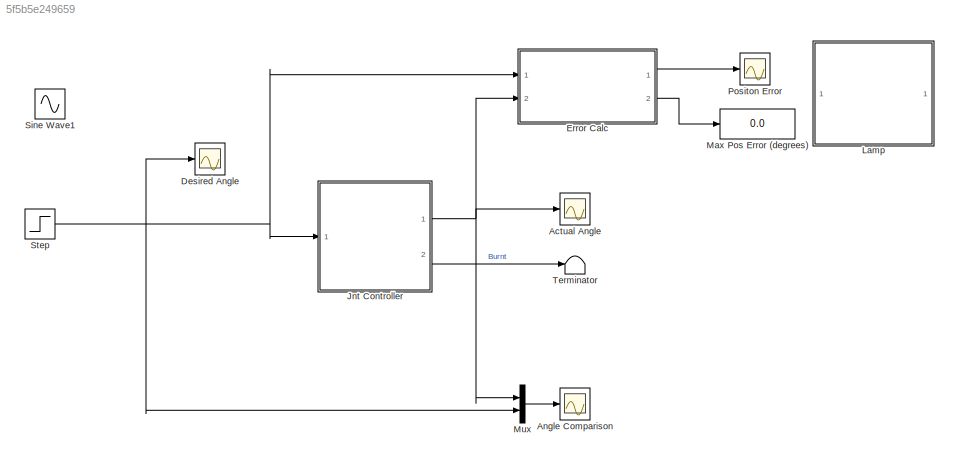
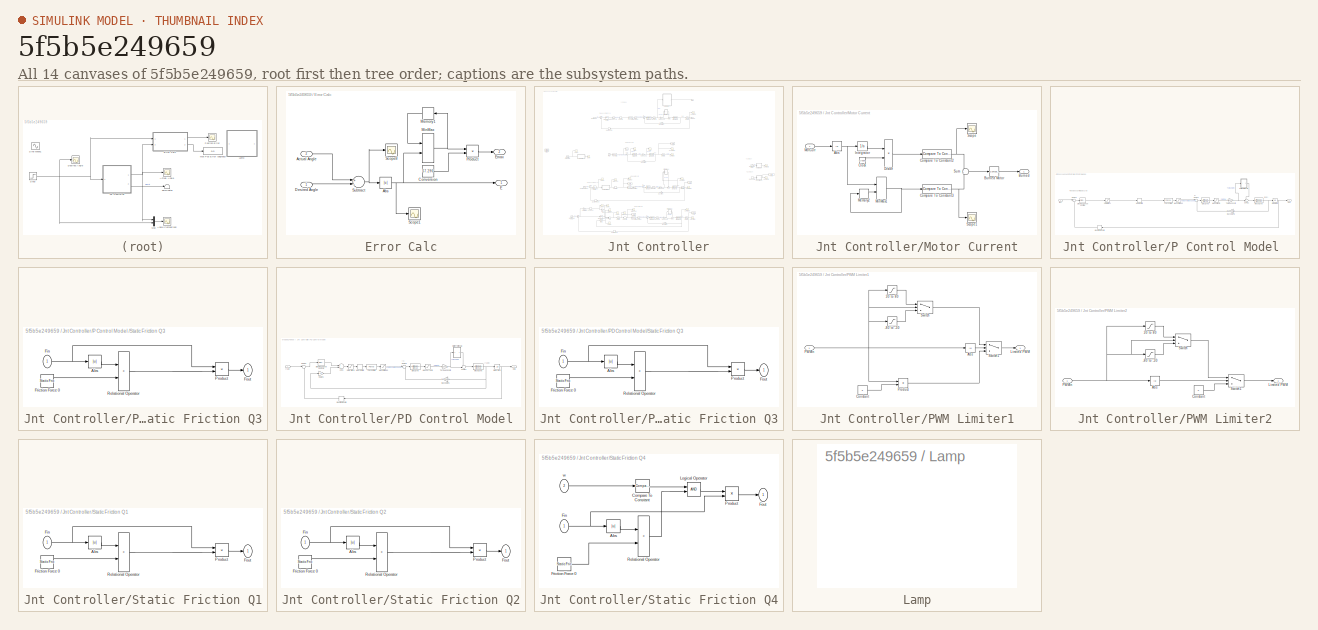
[diagram: thumbnail index - all 14 canvases of the model, root first then tree order]
MODEL slx_5f5b5e249659
KIND model
CONFIG AbsTol = auto
CONFIG EnableMultiTasking = off
CONFIG FixedStep = 0.001
CONFIG MaxStep = auto
CONFIG MinStep = auto
CONFIG RelTol = 1e-3
CONFIG SampleTimeConstraint = Unconstrained
CONFIG Solver = VariableStepAuto
CONFIG SolverName = VariableStepAuto
CONFIG StartTime = 0.0
CONFIG StopTime = 12
BLOCK [Scope] Actual Angle
  NumInputPorts = 1
  Ports = [1]
  ScopeSpecificationString = Simulink.scopes.TimeScopeBlockCfg('CurrentConfiguration', extmgr.ConfigurationSet(extmgr.Configuration('Core','General UI',true,'FigureColor',[1 1 1]),extmgr.Configuration('Core','Source UI',true),extmgr.Configuration('Sources','WiredSimulink',true,'DataLoggingSaveFormat','Array','DataLoggingDecimation','1','DataLoggingDecimateData',true,'DataLoggingVariableName','ScopeData2'),extmgr.Configuration...<+1987ch>
BLOCK [Scope] Angle Comparison
  NumInputPorts = 1
  Ports = [1]
  ScopeSpecificationString = Simulink.scopes.TimeScopeBlockCfg('CurrentConfiguration', extmgr.ConfigurationSet(extmgr.Configuration('Core','General UI',true,'FigureColor',[1 1 1]),extmgr.Configuration('Core','Source UI',true),extmgr.Configuration('Sources','WiredSimulink',true,'DataLoggingSaveFormat','Array','DataLoggingDecimation','1','DataLoggingDecimateData',true,'DataLoggingVariableName','ScopeData3'),extmgr.Configuration...<+2020ch>
BLOCK [Scope] Desired Angle
  NumInputPorts = 1
  Ports = [1]
  ScopeSpecificationString = Simulink.scopes.TimeScopeBlockCfg('CurrentConfiguration', extmgr.ConfigurationSet(extmgr.Configuration('Core','General UI',true,'FigureColor',[1 1 1]),extmgr.Configuration('Core','Source UI',true),extmgr.Configuration('Sources','WiredSimulink',true,'DataLoggingSaveFormat','Array','DataLoggingDecimation','1','DataLoggingDecimateData',true,'DataLoggingVariableName','ScopeData1'),extmgr.Configuration...<+2031ch>
BLOCK [SubSystem] Error Calc
  Ports = [2, 2]
  RequestExecContextInheritance = off
  Variant = off
BLOCK [Abs] Error Calc/Abs
  SaturateOnIntegerOverflow = off
BLOCK [Inport] Error Calc/Actual Angle
  IconDisplay = Port number
  Port = 2
BLOCK [Constant] Error Calc/Conversion
  Value = 57.296
BLOCK [Inport] Error Calc/Desired Angle
  IconDisplay = Port number
BLOCK [Outport] Error Calc/E
  IconDisplay = Port number
BLOCK [Outport] Error Calc/Emax
  IconDisplay = Port number
  Port = 2
BLOCK [Memory] Error Calc/Memory1
BLOCK [MinMax] Error Calc/MinMax
  Function = max
  InputSameDT = off
  Inputs = 2
  Ports = [2, 1]
  SaturateOnIntegerOverflow = off
  ZeroCross = off
BLOCK [Product] Error Calc/Product
  InputSameDT = off
  OutDataTypeStr = Inherit: Inherit via internal rule
  Ports = [2, 1]
  RndMeth = Floor
  SaturateOnIntegerOverflow = off
BLOCK [Scope] Error Calc/Scope1
  NumInputPorts = 1
  Ports = [1]
  ScopeSpecificationString = Simulink.scopes.TimeScopeBlockCfg('CurrentConfiguration', extmgr.ConfigurationSet(extmgr.Configuration('Core','General UI',true),extmgr.Configuration('Core','Source UI',true),extmgr.Configuration('Sources','WiredSimulink',true,'DataLoggingVariableName','ScopeData2'),extmgr.Configuration('Visuals','Time Domain',true,'SerializedDisplays',{struct('MinYLimReal','-2.14304','MaxYLimReal','3.57941','YLab...<+1439ch>
BLOCK [Scope] Error Calc/Scope8
  NumInputPorts = 1
  Ports = [1]
  ScopeSpecificationString = Simulink.scopes.TimeScopeBlockCfg('CurrentConfiguration', extmgr.ConfigurationSet(extmgr.Configuration('Core','General UI',true),extmgr.Configuration('Core','Source UI',true),extmgr.Configuration('Sources','WiredSimulink',true,'DataLoggingVariableName','ScopeData3'),extmgr.Configuration('Visuals','Time Domain',true,'SerializedDisplays',{struct('MinYLimReal','-2.14304','MaxYLimReal','3.57941','YLab...<+1444ch>
BLOCK [Sum] Error Calc/Subtract
  InputSameDT = off
  Inputs = +-
  OutDataTypeStr = Inherit: Inherit via internal rule
  Ports = [2, 1]
  SaturateOnIntegerOverflow = off
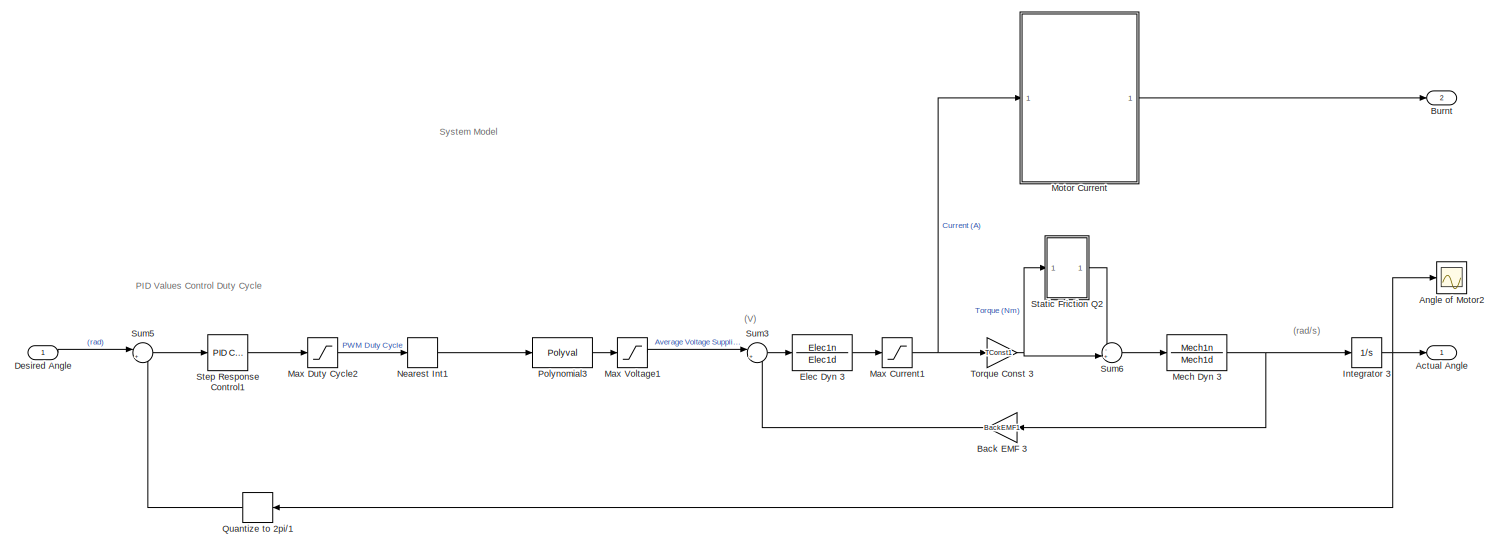
[diagram: Jnt Controller - part 1/8, top center region]
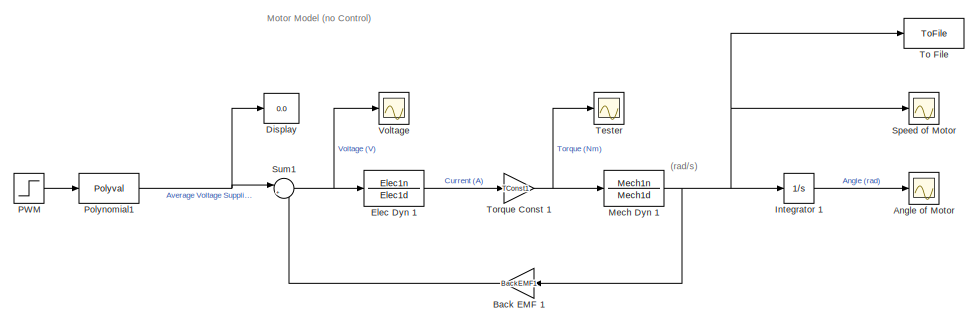
[diagram: Jnt Controller - part 2/8, central region]
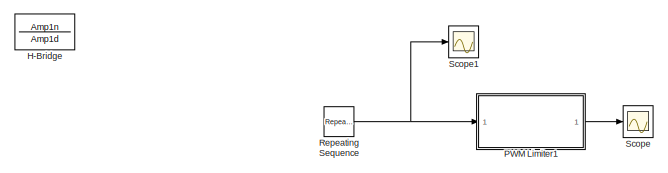
[diagram: Jnt Controller - part 3/8, middle left region]
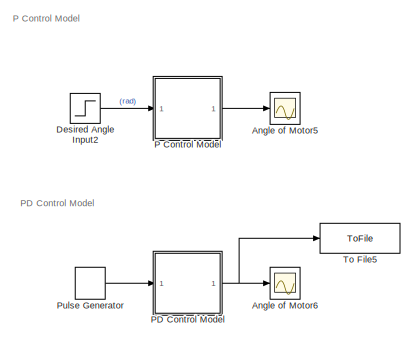
[diagram: Jnt Controller - part 4/8, middle right region]
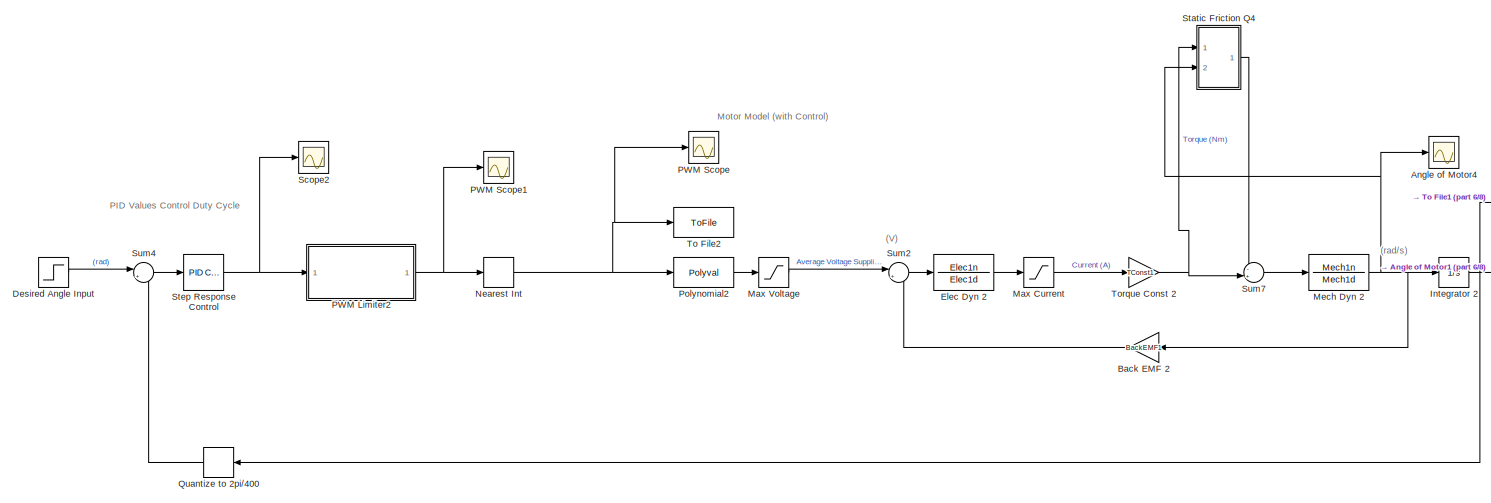
[diagram: Jnt Controller - part 5/8, central region]
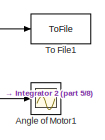
[diagram: Jnt Controller - part 6/8, central region]
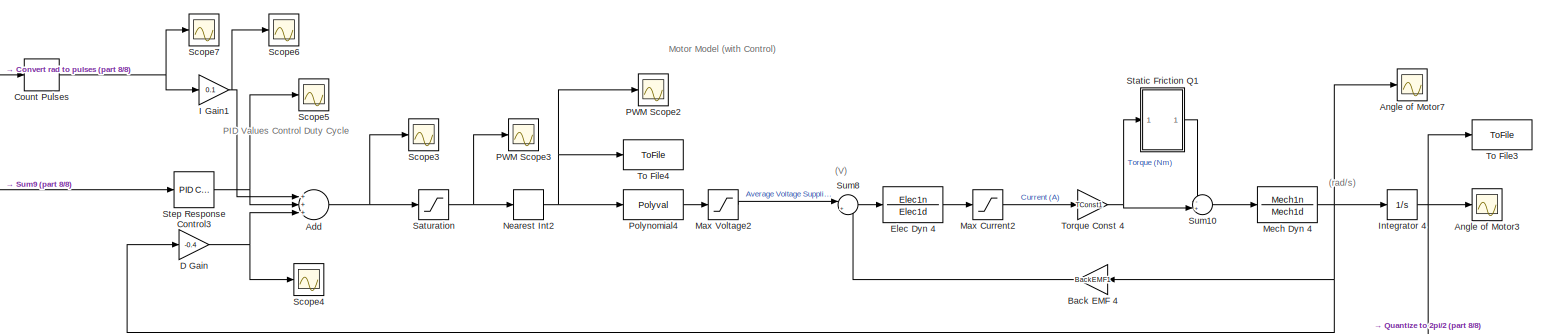
[diagram: Jnt Controller - part 7/8, bottom center region]
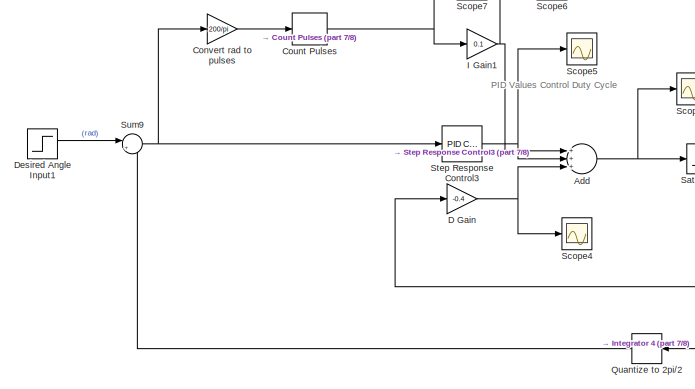
[diagram: Jnt Controller - part 8/8, bottom left region]
BLOCK [SubSystem] Jnt Controller
  Ports = [1, 2]
  RequestExecContextInheritance = off
  Variant = off
BLOCK [Outport] Jnt Controller/Actual Angle
  IconDisplay = Port number
BLOCK [Sum] Jnt Controller/Add
  InputSameDT = off
  Inputs = +++
  OutDataTypeStr = Inherit: Inherit via internal rule
  Ports = [3, 1]
  SaturateOnIntegerOverflow = off
BLOCK [Scope] Jnt Controller/Angle of Motor
  NumInputPorts = 1
  Ports = [1]
  ScopeSpecificationString = Simulink.scopes.TimeScopeBlockCfg('CurrentConfiguration', extmgr.ConfigurationSet(extmgr.Configuration('Core','General UI',true),extmgr.Configuration('Core','Source UI',true),extmgr.Configuration('Sources','WiredSimulink',true,'DataLoggingVariableName','ScopeData6'),extmgr.Configuration('Visuals','Time Domain',true,'SerializedDisplays',{struct('MinYLimReal','-177.49401','MaxYLimReal','1597.13387',...<+1423ch>
BLOCK [Scope] Jnt Controller/Angle of Motor1
  Commented = on
  NumInputPorts = 1
  Ports = [1]
  ScopeSpecificationString = Simulink.scopes.TimeScopeBlockCfg('CurrentConfiguration', extmgr.ConfigurationSet(extmgr.Configuration('Core','General UI',true),extmgr.Configuration('Core','Source UI',true),extmgr.Configuration('Sources','WiredSimulink',true,'DataLoggingVariableName','ScopeData1'),extmgr.Configuration('Visuals','Time Domain',true,'SerializedDisplays',{struct('MinYLimReal','-0.0099','MaxYLimReal','0.0891','YLabel...<+1424ch>
BLOCK [Scope] Jnt Controller/Angle of Motor2
  NumInputPorts = 1
  Ports = [1]
  ScopeSpecificationString = Simulink.scopes.TimeScopeBlockCfg('CurrentConfiguration', extmgr.ConfigurationSet(extmgr.Configuration('Core','General UI',true),extmgr.Configuration('Core','Source UI',true),extmgr.Configuration('Sources','WiredSimulink',true,'DataLoggingVariableName','ScopeData1'),extmgr.Configuration('Visuals','Time Domain',true,'SerializedDisplays',{struct('MinYLimReal','-1.00000','MaxYLimReal','1.00000','YLab...<+1408ch>
BLOCK [Scope] Jnt Controller/Angle of Motor3
  NumInputPorts = 1
  Ports = [1]
  ScopeSpecificationString = Simulink.scopes.TimeScopeBlockCfg('CurrentConfiguration', extmgr.ConfigurationSet(extmgr.Configuration('Core','General UI',true),extmgr.Configuration('Core','Source UI',true),extmgr.Configuration('Sources','WiredSimulink',true,'DataLoggingVariableName','ScopeData6'),extmgr.Configuration('Visuals','Time Domain',true,'SerializedDisplays',{struct('MinYLimReal','-0.42161','MaxYLimReal','3.79452','YLab...<+1407ch>
BLOCK [Scope] Jnt Controller/Angle of Motor4
  Commented = on
  NumInputPorts = 1
  Ports = [1]
  ScopeSpecificationString = Simulink.scopes.TimeScopeBlockCfg('CurrentConfiguration', extmgr.ConfigurationSet(extmgr.Configuration('Core','General UI',true),extmgr.Configuration('Core','Source UI',true),extmgr.Configuration('Sources','WiredSimulink',true,'DataLoggingVariableName','ScopeData10'),extmgr.Configuration('Visuals','Time Domain',true,'SerializedDisplays',{struct('MinYLimReal','-0.0102','MaxYLimReal','0.0918','YLabe...<+1397ch>
BLOCK [Scope] Jnt Controller/Angle of Motor5
  NumInputPorts = 1
  Ports = [1]
  ScopeSpecificationString = Simulink.scopes.TimeScopeBlockCfg('CurrentConfiguration', extmgr.ConfigurationSet(extmgr.Configuration('Core','General UI',true),extmgr.Configuration('Core','Source UI',true),extmgr.Configuration('Sources','WiredSimulink',true,'DataLoggingVariableName','ScopeData6'),extmgr.Configuration('Visuals','Time Domain',true,'SerializedDisplays',{struct('MinYLimReal','-2.18688','MaxYLimReal','19.6819','YLab...<+1407ch>
BLOCK [Scope] Jnt Controller/Angle of Motor6
  NumInputPorts = 1
  Ports = [1]
  ScopeSpecificationString = Simulink.scopes.TimeScopeBlockCfg('CurrentConfiguration', extmgr.ConfigurationSet(extmgr.Configuration('Core','General UI',true),extmgr.Configuration('Core','Source UI',true),extmgr.Configuration('Sources','WiredSimulink',true,'DataLoggingVariableName','ScopeData11'),extmgr.Configuration('Visuals','Time Domain',true,'SerializedDisplays',{struct('MinYLimReal','-2.31303','MaxYLimReal','4.71645','YLa...<+1412ch>
BLOCK [Scope] Jnt Controller/Angle of Motor7
  NumInputPorts = 1
  Ports = [1]
  ScopeSpecificationString = Simulink.scopes.TimeScopeBlockCfg('CurrentConfiguration', extmgr.ConfigurationSet(extmgr.Configuration('Core','General UI',true),extmgr.Configuration('Core','Source UI',true),extmgr.Configuration('Sources','WiredSimulink',true,'DataLoggingVariableName','ScopeData12'),extmgr.Configuration('Visuals','Time Domain',true,'SerializedDisplays',{struct('MinYLimReal','-14.12602','MaxYLimReal','67.82391','Y...<+1412ch>
BLOCK [Gain] Jnt Controller/Back EMF 1
  Gain = BackEMF1
  OutDataTypeStr = Inherit: Inherit via internal rule
  ParamDataTypeStr = Inherit: Inherit via internal rule
  SaturateOnIntegerOverflow = off
BLOCK [Gain] Jnt Controller/Back EMF 2
  Commented = on
  Gain = BackEMF1
  OutDataTypeStr = Inherit: Inherit via internal rule
  ParamDataTypeStr = Inherit: Inherit via internal rule
  SaturateOnIntegerOverflow = off
BLOCK [Gain] Jnt Controller/Back EMF 3
  Gain = BackEMF1
  OutDataTypeStr = Inherit: Inherit via internal rule
  ParamDataTypeStr = Inherit: Inherit via internal rule
  SaturateOnIntegerOverflow = off
BLOCK [Gain] Jnt Controller/Back EMF 4
  Gain = BackEMF1
  OutDataTypeStr = Inherit: Inherit via internal rule
  ParamDataTypeStr = Inherit: Inherit via internal rule
  SaturateOnIntegerOverflow = off
BLOCK [Outport] Jnt Controller/Burnt
  IconDisplay = Port number
  Port = 2
BLOCK [Gain] Jnt Controller/Convert rad to pulses
  Gain = 200/pi
  OutDataTypeStr = Inherit: Inherit via internal rule
  ParamDataTypeStr = Inherit: Inherit via internal rule
  SaturateOnIntegerOverflow = off
BLOCK [DiscreteIntegrator] Jnt Controller/Count Pulses
  ICPrevOutput = DiscIntNeverNeededParam
  ICPrevScaledInput = DiscIntNeverNeededParam
  InitialConditionSetting = State (most efficient)
  Ports = [1, 1]
  SampleTime = 0.001
BLOCK [Gain] Jnt Controller/D Gain
  Gain = -0.4
  OutDataTypeStr = Inherit: Inherit via internal rule
  ParamDataTypeStr = Inherit: Inherit via internal rule
  SaturateOnIntegerOverflow = off
BLOCK [Inport] Jnt Controller/Desired Angle
  IconDisplay = Port number
BLOCK [Step] Jnt Controller/Desired Angle Input
  After = pi
  Commented = on
  SampleTime = 0
  Time = 0
BLOCK [Step] Jnt Controller/Desired Angle Input1
  After = pi
  SampleTime = 0
  Time = 0
BLOCK [Step] Jnt Controller/Desired Angle Input2
  After = 4*pi
  SampleTime = 0
  Time = 0
BLOCK [Display] Jnt Controller/Display
  Decimation = 1
  Ports = [1]
BLOCK [TransferFcn] Jnt Controller/Elec Dyn 1
  Denominator = Elec1d
  Numerator = Elec1n
BLOCK [TransferFcn] Jnt Controller/Elec Dyn 2
  Commented = on
  Denominator = Elec1d
  Numerator = Elec1n
BLOCK [TransferFcn] Jnt Controller/Elec Dyn 3
  Denominator = Elec1d
  Numerator = Elec1n
BLOCK [TransferFcn] Jnt Controller/Elec Dyn 4
  Denominator = Elec1d
  Numerator = Elec1n
BLOCK [TransferFcn] Jnt Controller/H-Bridge 
  Commented = on
  Denominator = Amp1d
  Numerator = Amp1n
BLOCK [Gain] Jnt Controller/I Gain1
  Gain = 0.1
  OutDataTypeStr = Inherit: Inherit via internal rule
  ParamDataTypeStr = Inherit: Inherit via internal rule
  SaturateOnIntegerOverflow = off
BLOCK [Integrator] Jnt Controller/Integrator 1
  Ports = [1, 1]
BLOCK [Integrator] Jnt Controller/Integrator 2
  Commented = on
  Ports = [1, 1]
BLOCK [Integrator] Jnt Controller/Integrator 3
  Ports = [1, 1]
BLOCK [Integrator] Jnt Controller/Integrator 4
  Ports = [1, 1]
BLOCK [Saturate] Jnt Controller/Max Current
  Commented = on
  InputPortMap = u0
  LowerLimit = -1
  Ports = [1, 1]
  UpperLimit = 1
BLOCK [Saturate] Jnt Controller/Max Current1
  InputPortMap = u0
  LowerLimit = -1
  Ports = [1, 1]
  UpperLimit = 1
BLOCK [Saturate] Jnt Controller/Max Current2
  InputPortMap = u0
  LowerLimit = -1
  Ports = [1, 1]
  UpperLimit = 1
BLOCK [Saturate] Jnt Controller/Max Duty Cycle2
  InputPortMap = u0
  LowerLimit = -255
  Ports = [1, 1]
  UpperLimit = 255
BLOCK [Saturate] Jnt Controller/Max Voltage
  Commented = on
  InputPortMap = u0
  LowerLimit = -AmpSat1
  Ports = [1, 1]
  UpperLimit = AmpSat1
BLOCK [Saturate] Jnt Controller/Max Voltage1
  InputPortMap = u0
  LowerLimit = -AmpSat1
  Ports = [1, 1]
  UpperLimit = AmpSat1
BLOCK [Saturate] Jnt Controller/Max Voltage2
  InputPortMap = u0
  LowerLimit = -AmpSat1
  Ports = [1, 1]
  UpperLimit = AmpSat1
BLOCK [TransferFcn] Jnt Controller/Mech Dyn 1
  Denominator = Mech1d
  Numerator = Mech1n
BLOCK [TransferFcn] Jnt Controller/Mech Dyn 2
  Commented = on
  Denominator = Mech1d
  Numerator = Mech1n
BLOCK [TransferFcn] Jnt Controller/Mech Dyn 3
  Denominator = Mech1d
  Numerator = Mech1n
BLOCK [TransferFcn] Jnt Controller/Mech Dyn 4
  Denominator = Mech1d
  Numerator = Mech1n
BLOCK [SubSystem] Jnt Controller/Motor Current
  Ports = [1, 1]
  RequestExecContextInheritance = off
  Variant = off
BLOCK [Abs] Jnt Controller/Motor Current/Abs
  SaturateOnIntegerOverflow = off
BLOCK [Outport] Jnt Controller/Motor Current/Burned
  IconDisplay = Port number
BLOCK [Reference] Jnt Controller/Motor Current/Burned Motor  REF=simulink/Logic and Bit
Operations/Compare
To Zero
  Ports = [1, 1]
  SourceBlock = simulink/Logic and Bit\nOperations/Compare\nTo Zero
  SourceProductBaseCode = SL
  SourceProductName = Simulink
  SourceType = Compare To Zero
BLOCK [Clock] Jnt Controller/Motor Current/Clock
BLOCK [Reference] Jnt Controller/Motor Current/Compare To Constant2  REF=simulink/Logic and Bit
Operations/Compare
To Constant
  Ports = [1, 1]
  SourceBlock = simulink/Logic and Bit\nOperations/Compare\nTo Constant
  SourceProductBaseCode = SL
  SourceProductName = Simulink
  SourceType = Compare To Constant
BLOCK [Reference] Jnt Controller/Motor Current/Compare To Constant3  REF=simulink/Logic and Bit
Operations/Compare
To Constant
  Ports = [1, 1]
  SourceBlock = simulink/Logic and Bit\nOperations/Compare\nTo Constant
  SourceProductBaseCode = SL
  SourceProductName = Simulink
  SourceType = Compare To Constant
BLOCK [Product] Jnt Controller/Motor Current/Divide
  InputSameDT = off
  Inputs = */
  OutDataTypeStr = Inherit: Inherit via internal rule
  Ports = [2, 1]
  RndMeth = Floor
  SaturateOnIntegerOverflow = off
BLOCK [Integrator] Jnt Controller/Motor Current/Integrator
  Ports = [1, 1]
BLOCK [Memory] Jnt Controller/Motor Current/Memory2
BLOCK [MinMax] Jnt Controller/Motor Current/MinMax1
  Function = max
  InputSameDT = off
  Inputs = 2
  Ports = [2, 1]
  SaturateOnIntegerOverflow = off
  ZeroCross = off
BLOCK [Inport] Jnt Controller/Motor Current/MotCurr
  IconDisplay = Port number
BLOCK [Scope] Jnt Controller/Motor Current/Scope
  NumInputPorts = 1
  Ports = [1]
  ScopeSpecificationString = Simulink.scopes.TimeScopeBlockCfg('CurrentConfiguration', extmgr.ConfigurationSet(extmgr.Configuration('Core','General UI',true),extmgr.Configuration('Core','Source UI',true),extmgr.Configuration('Sources','WiredSimulink',true,'DataLoggingVariableName','ScopeData1'),extmgr.Configuration('Visuals','Time Domain',true,'SerializedDisplays',{struct('MinYLimReal','-0.125','MaxYLimReal','1.125','YLabelRe...<+1400ch>
BLOCK [Scope] Jnt Controller/Motor Current/Scope1
  NumInputPorts = 1
  Ports = [1]
  ScopeSpecificationString = Simulink.scopes.TimeScopeBlockCfg('CurrentConfiguration', extmgr.ConfigurationSet(extmgr.Configuration('Core','General UI',true),extmgr.Configuration('Core','Source UI',true),extmgr.Configuration('Sources','WiredSimulink',true,'DataLoggingVariableName','ScopeData2'),extmgr.Configuration('Visuals','Time Domain',true,'SerializedDisplays',{struct('MinYLimReal','-1.00000','MaxYLimReal','1.00000','YLab...<+1412ch>
BLOCK [Sum] Jnt Controller/Motor Current/Sum
  IconShape = round
  InputSameDT = off
  OutDataTypeStr = Inherit: Inherit via internal rule
  Ports = [2, 1]
  SaturateOnIntegerOverflow = off
BLOCK [Quantizer] Jnt Controller/Nearest Int
  Commented = on
  QuantizationInterval = 1
BLOCK [Quantizer] Jnt Controller/Nearest Int1
  QuantizationInterval = 1
BLOCK [Quantizer] Jnt Controller/Nearest Int2
  QuantizationInterval = 1
BLOCK [SubSystem] Jnt Controller/P Control Model 
  Ports = [1, 1]
  RequestExecContextInheritance = off
  Variant = off
BLOCK [Inport] Jnt Controller/P Control Model /(rad)
  IconDisplay = Port number
BLOCK [Gain] Jnt Controller/P Control Model /Back EMF 5
  Gain = BackEMF1
  OutDataTypeStr = Inherit: Inherit via internal rule
  ParamDataTypeStr = Inherit: Inherit via internal rule
  SaturateOnIntegerOverflow = off
BLOCK [TransferFcn] Jnt Controller/P Control Model /Elec Dyn 5
  Denominator = Elec1d
  Numerator = Elec1n
BLOCK [Integrator] Jnt Controller/P Control Model /Integrator 5
  Ports = [1, 1]
BLOCK [Saturate] Jnt Controller/P Control Model /Max Current3
  InputPortMap = u0
  LowerLimit = -1
  Ports = [1, 1]
  UpperLimit = 1
BLOCK [Saturate] Jnt Controller/P Control Model /Max Voltage3
  InputPortMap = u0
  LowerLimit = -AmpSat1
  Ports = [1, 1]
  UpperLimit = AmpSat1
BLOCK [TransferFcn] Jnt Controller/P Control Model /Mech Dyn 5
  Denominator = Mech1d
  Numerator = Mech1n
BLOCK [Quantizer] Jnt Controller/P Control Model /Nearest Int3
  QuantizationInterval = 1
BLOCK [Outport] Jnt Controller/P Control Model /Out1
  IconDisplay = Port number
BLOCK [Polyval] Jnt Controller/P Control Model /Polynomial5
  Coefs = PWMConversion
BLOCK [Quantizer] Jnt Controller/P Control Model /Quantize to 2pi//3
  QuantizationInterval = 2*pi/400
BLOCK [Saturate] Jnt Controller/P Control Model /Saturation1
  InputPortMap = u0
  LowerLimit = -255
  Ports = [1, 1]
  UpperLimit = 255
BLOCK [SubSystem] Jnt Controller/P Control Model /Static Friction Q3
  Ports = [1, 1]
  RequestExecContextInheritance = off
  Variant = off
BLOCK [Abs] Jnt Controller/P Control Model /Static Friction Q3/Abs
  SaturateOnIntegerOverflow = off
  ZeroCross = off
BLOCK [Inport] Jnt Controller/P Control Model /Static Friction Q3/Fin
  IconDisplay = Port number
BLOCK [Outport] Jnt Controller/P Control Model /Static Friction Q3/Fout
  IconDisplay = Port number
BLOCK [Constant] Jnt Controller/P Control Model /Static Friction Q3/Friction Force 0
  Value = StaticFric
BLOCK [Product] Jnt Controller/P Control Model /Static Friction Q3/Product
  InputSameDT = off
  OutDataTypeStr = Inherit: Inherit via internal rule
  Ports = [2, 1]
  RndMeth = Floor
  SaturateOnIntegerOverflow = off
BLOCK [RelationalOperator] Jnt Controller/P Control Model /Static Friction Q3/Relational Operator
  InputSameDT = off
  Operator = <
  OutDataTypeStr = boolean
  Ports = [2, 1]
  RndMeth = Simplest
  ZeroCross = off
BLOCK [Reference] Jnt Controller/P Control Model /Step Response Control3  REF=simulink/Continuous/PID Controller
  Ports = [1, 1]
  SourceBlock = simulink/Continuous/PID Controller
  SourceProductBaseCode = SL
  SourceProductName = Simulink
  SourceType = PID 1dof
BLOCK [Sum] Jnt Controller/P Control Model /Sum11
  IconShape = round
  InputSameDT = off
  Inputs = -+|
  OutDataTypeStr = Inherit: Inherit via internal rule
  Ports = [2, 1]
  SaturateOnIntegerOverflow = off
BLOCK [Sum] Jnt Controller/P Control Model /Sum12
  IconShape = round
  InputSameDT = off
  Inputs = |+-
  OutDataTypeStr = Inherit: Inherit via internal rule
  Ports = [2, 1]
  SaturateOnIntegerOverflow = off
BLOCK [Sum] Jnt Controller/P Control Model /Sum13
  IconShape = round
  InputSameDT = off
  Inputs = |+-
  OutDataTypeStr = Inherit: Inherit via internal rule
  Ports = [2, 1]
  SaturateOnIntegerOverflow = off
BLOCK [Gain] Jnt Controller/P Control Model /Torque Const 5
  Gain = TConst1
  OutDataTypeStr = Inherit: Inherit via internal rule
  ParamDataTypeStr = Inherit: Inherit via internal rule
  SaturateOnIntegerOverflow = off
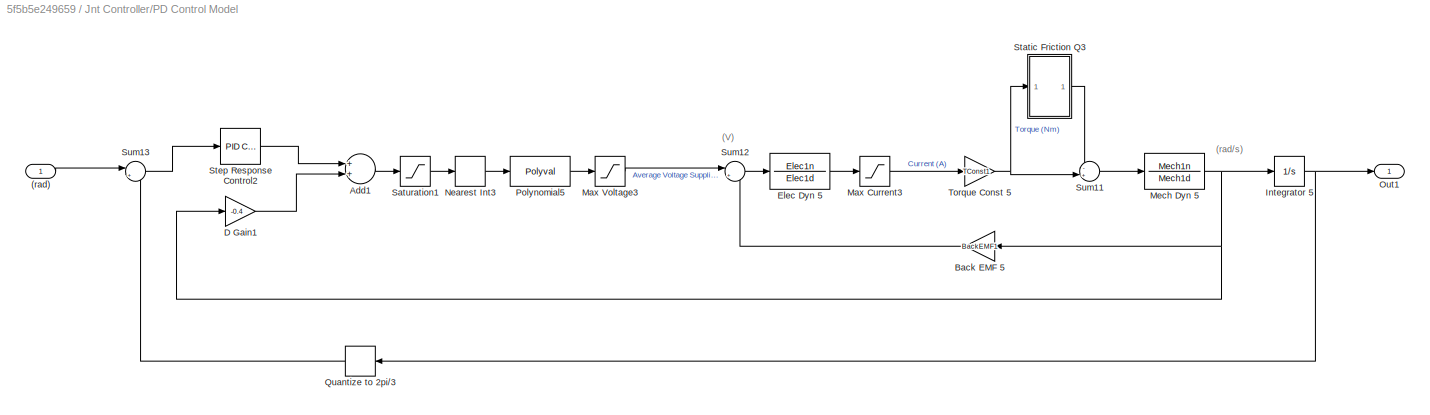
BLOCK [SubSystem] Jnt Controller/PD Control Model
  Ports = [1, 1]
  RequestExecContextInheritance = off
  Variant = off
BLOCK [Inport] Jnt Controller/PD Control Model/(rad)
  IconDisplay = Port number
BLOCK [Sum] Jnt Controller/PD Control Model/Add1
  InputSameDT = off
  OutDataTypeStr = Inherit: Inherit via internal rule
  Ports = [2, 1]
  SaturateOnIntegerOverflow = off
BLOCK [Gain] Jnt Controller/PD Control Model/Back EMF 5
  Gain = BackEMF1
  OutDataTypeStr = Inherit: Inherit via internal rule
  ParamDataTypeStr = Inherit: Inherit via internal rule
  SaturateOnIntegerOverflow = off
BLOCK [Gain] Jnt Controller/PD Control Model/D Gain1
  Gain = -0.4
  OutDataTypeStr = Inherit: Inherit via internal rule
  ParamDataTypeStr = Inherit: Inherit via internal rule
  SaturateOnIntegerOverflow = off
BLOCK [TransferFcn] Jnt Controller/PD Control Model/Elec Dyn 5
  Denominator = Elec1d
  Numerator = Elec1n
BLOCK [Integrator] Jnt Controller/PD Control Model/Integrator 5
  Ports = [1, 1]
BLOCK [Saturate] Jnt Controller/PD Control Model/Max Current3
  InputPortMap = u0
  LowerLimit = -1
  Ports = [1, 1]
  UpperLimit = 1
BLOCK [Saturate] Jnt Controller/PD Control Model/Max Voltage3
  InputPortMap = u0
  LowerLimit = -AmpSat1
  Ports = [1, 1]
  UpperLimit = AmpSat1
BLOCK [TransferFcn] Jnt Controller/PD Control Model/Mech Dyn 5
  Denominator = Mech1d
  Numerator = Mech1n
BLOCK [Quantizer] Jnt Controller/PD Control Model/Nearest Int3
  QuantizationInterval = 1
BLOCK [Outport] Jnt Controller/PD Control Model/Out1
  IconDisplay = Port number
BLOCK [Polyval] Jnt Controller/PD Control Model/Polynomial5
  Coefs = PWMConversion
BLOCK [Quantizer] Jnt Controller/PD Control Model/Quantize to 2pi//3
  QuantizationInterval = 2*pi/400
BLOCK [Saturate] Jnt Controller/PD Control Model/Saturation1
  InputPortMap = u0
  LowerLimit = -255
  Ports = [1, 1]
  UpperLimit = 255
BLOCK [SubSystem] Jnt Controller/PD Control Model/Static Friction Q3
  Ports = [1, 1]
  RequestExecContextInheritance = off
  Variant = off
BLOCK [Abs] Jnt Controller/PD Control Model/Static Friction Q3/Abs
  SaturateOnIntegerOverflow = off
  ZeroCross = off
BLOCK [Inport] Jnt Controller/PD Control Model/Static Friction Q3/Fin
  IconDisplay = Port number
BLOCK [Outport] Jnt Controller/PD Control Model/Static Friction Q3/Fout
  IconDisplay = Port number
BLOCK [Constant] Jnt Controller/PD Control Model/Static Friction Q3/Friction Force 0
  Value = StaticFric
BLOCK [Product] Jnt Controller/PD Control Model/Static Friction Q3/Product
  InputSameDT = off
  OutDataTypeStr = Inherit: Inherit via internal rule
  Ports = [2, 1]
  RndMeth = Floor
  SaturateOnIntegerOverflow = off
BLOCK [RelationalOperator] Jnt Controller/PD Control Model/Static Friction Q3/Relational Operator
  InputSameDT = off
  Operator = <
  OutDataTypeStr = boolean
  Ports = [2, 1]
  RndMeth = Simplest
  ZeroCross = off
BLOCK [Reference] Jnt Controller/PD Control Model/Step Response Control2  REF=simulink/Continuous/PID Controller
  Ports = [1, 1]
  SourceBlock = simulink/Continuous/PID Controller
  SourceProductBaseCode = SL
  SourceProductName = Simulink
  SourceType = PID 1dof
BLOCK [Sum] Jnt Controller/PD Control Model/Sum11
  IconShape = round
  InputSameDT = off
  Inputs = -+|
  OutDataTypeStr = Inherit: Inherit via internal rule
  Ports = [2, 1]
  SaturateOnIntegerOverflow = off
BLOCK [Sum] Jnt Controller/PD Control Model/Sum12
  IconShape = round
  InputSameDT = off
  Inputs = |+-
  OutDataTypeStr = Inherit: Inherit via internal rule
  Ports = [2, 1]
  SaturateOnIntegerOverflow = off
BLOCK [Sum] Jnt Controller/PD Control Model/Sum13
  IconShape = round
  InputSameDT = off
  Inputs = |+-
  OutDataTypeStr = Inherit: Inherit via internal rule
  Ports = [2, 1]
  SaturateOnIntegerOverflow = off
BLOCK [Gain] Jnt Controller/PD Control Model/Torque Const 5
  Gain = TConst1
  OutDataTypeStr = Inherit: Inherit via internal rule
  ParamDataTypeStr = Inherit: Inherit via internal rule
  SaturateOnIntegerOverflow = off
BLOCK [Step] Jnt Controller/PWM
  After = 25
  SampleTime = 0
  Time = 0.02
BLOCK [SubSystem] Jnt Controller/PWM Limiter1
  Ports = [1, 1]
  RequestExecContextInheritance = off
  Variant = off
BLOCK [Saturate] Jnt Controller/PWM Limiter1/-80 to -30
  InputPortMap = u0
  LowerLimit = -80
  Ports = [1, 1]
  RndMeth = Nearest
  UpperLimit = -30
BLOCK [Saturate] Jnt Controller/PWM Limiter1/30 to 80
  InputPortMap = u0
  LowerLimit = 30
  Ports = [1, 1]
  RndMeth = Round
  UpperLimit = 80
BLOCK [Abs] Jnt Controller/PWM Limiter1/Abs
  SaturateOnIntegerOverflow = off
BLOCK [Constant] Jnt Controller/PWM Limiter1/Constant
  Value = 6
BLOCK [Outport] Jnt Controller/PWM Limiter1/Limited PWM 
  IconDisplay = Port number
BLOCK [Inport] Jnt Controller/PWM Limiter1/PWMIn
  IconDisplay = Port number
BLOCK [Product] Jnt Controller/PWM Limiter1/Product
  InputSameDT = off
  OutDataTypeStr = Inherit: Inherit via internal rule
  Ports = [2, 1]
  RndMeth = Floor
  SaturateOnIntegerOverflow = off
BLOCK [Switch] Jnt Controller/PWM Limiter1/Switch
  Criteria = u2 > Threshold
  InputSameDT = off
  SaturateOnIntegerOverflow = off
BLOCK [Switch] Jnt Controller/PWM Limiter1/Switch1
  Criteria = u2 > Threshold
  InputSameDT = off
  SaturateOnIntegerOverflow = off
  Threshold = 5
BLOCK [SubSystem] Jnt Controller/PWM Limiter2
  Commented = on
  Ports = [1, 1]
  RequestExecContextInheritance = off
  Variant = off
BLOCK [Saturate] Jnt Controller/PWM Limiter2/-80 to -30
  InputPortMap = u0
  LowerLimit = -80
  Ports = [1, 1]
  RndMeth = Nearest
  UpperLimit = -25
BLOCK [Saturate] Jnt Controller/PWM Limiter2/30 to 80
  InputPortMap = u0
  LowerLimit = 25
  Ports = [1, 1]
  RndMeth = Round
  UpperLimit = 80
BLOCK [Abs] Jnt Controller/PWM Limiter2/Abs
  SaturateOnIntegerOverflow = off
BLOCK [Constant] Jnt Controller/PWM Limiter2/Constant
  Value = 0
BLOCK [Outport] Jnt Controller/PWM Limiter2/Limited PWM 
  IconDisplay = Port number
BLOCK [Inport] Jnt Controller/PWM Limiter2/PWMIn
  IconDisplay = Port number
BLOCK [Switch] Jnt Controller/PWM Limiter2/Switch
  Criteria = u2 > Threshold
  InputSameDT = off
  SaturateOnIntegerOverflow = off
BLOCK [Switch] Jnt Controller/PWM Limiter2/Switch1
  Criteria = u2 > Threshold
  InputSameDT = off
  SaturateOnIntegerOverflow = off
  Threshold = 1
BLOCK [Scope] Jnt Controller/PWM Scope
  Commented = on
  NumInputPorts = 1
  Ports = [1]
  ScopeSpecificationString = Simulink.scopes.TimeScopeBlockCfg('CurrentConfiguration', extmgr.ConfigurationSet(extmgr.Configuration('Core','General UI',true),extmgr.Configuration('Core','Source UI',true),extmgr.Configuration('Sources','WiredSimulink',true,'DataLoggingVariableName','ScopeData1'),extmgr.Configuration('Visuals','Time Domain',true,'SerializedDisplays',{struct('MinYLimReal','15.00000','MaxYLimReal','35.00000','YLa...<+1409ch>
BLOCK [Scope] Jnt Controller/PWM Scope1
  Commented = on
  NumInputPorts = 1
  Ports = [1]
  ScopeSpecificationString = Simulink.scopes.TimeScopeBlockCfg('CurrentConfiguration', extmgr.ConfigurationSet(extmgr.Configuration('Core','General UI',true),extmgr.Configuration('Core','Source UI',true),extmgr.Configuration('Sources','WiredSimulink',true,'DataLoggingVariableName','ScopeData5'),extmgr.Configuration('Visuals','Time Domain',true,'SerializedDisplays',{struct('MinYLimReal','15.00000','MaxYLimReal','35.00000','YLa...<+1410ch>
BLOCK [Scope] Jnt Controller/PWM Scope2
  NumInputPorts = 1
  Ports = [1]
  ScopeSpecificationString = Simulink.scopes.TimeScopeBlockCfg('CurrentConfiguration', extmgr.ConfigurationSet(extmgr.Configuration('Core','General UI',true),extmgr.Configuration('Core','Source UI',true),extmgr.Configuration('Sources','WiredSimulink',true,'DataLoggingVariableName','ScopeData7'),extmgr.Configuration('Visuals','Time Domain',true,'SerializedDisplays',{struct('MinYLimReal','-15.75','MaxYLimReal','61.75','YLabelRe...<+1392ch>
BLOCK [Scope] Jnt Controller/PWM Scope3
  NumInputPorts = 1
  Ports = [1]
  ScopeSpecificationString = Simulink.scopes.TimeScopeBlockCfg('CurrentConfiguration', extmgr.ConfigurationSet(extmgr.Configuration('Core','General UI',true),extmgr.Configuration('Core','Source UI',true),extmgr.Configuration('Sources','WiredSimulink',true,'DataLoggingVariableName','ScopeData8'),extmgr.Configuration('Visuals','Time Domain',true,'SerializedDisplays',{struct('MinYLimReal','-89.30095','MaxYLimReal','81.54228','YL...<+1427ch>
BLOCK [Polyval] Jnt Controller/Polynomial1
  Coefs = PWMConversion
BLOCK [Polyval] Jnt Controller/Polynomial2
  Coefs = PWMConversion
  Commented = on
BLOCK [Polyval] Jnt Controller/Polynomial3
  Coefs = PWMConversion
BLOCK [Polyval] Jnt Controller/Polynomial4
  Coefs = PWMConversion
BLOCK [DiscretePulseGenerator] Jnt Controller/Pulse Generator
  Amplitude = pi
  Period = 4
  PhaseDelay = 0.5
  Ports = [0, 1]
  PulseType = Time based
  PulseWidth = 50
BLOCK [Quantizer] Jnt Controller/Quantize to 2pi//1
  QuantizationInterval = 2*pi/400
BLOCK [Quantizer] Jnt Controller/Quantize to 2pi//2
  QuantizationInterval = 2*pi/400
BLOCK [Quantizer] Jnt Controller/Quantize to 2pi//400
  Commented = on
  QuantizationInterval = 2*pi/400
BLOCK [Reference] Jnt Controller/Repeating Sequence  REF=simulink/Sources/Repeating
Sequence
  Ports = [0, 1]
  SourceBlock = simulink/Sources/Repeating\nSequence
  SourceProductBaseCode = SL
  SourceProductName = Simulink
  SourceType = Repeating table
BLOCK [Saturate] Jnt Controller/Saturation
  InputPortMap = u0
  LowerLimit = -255
  Ports = [1, 1]
  UpperLimit = 255
BLOCK [Scope] Jnt Controller/Scope
  NumInputPorts = 1
  Ports = [1]
  ScopeSpecificationString = Simulink.scopes.TimeScopeBlockCfg('CurrentConfiguration', extmgr.ConfigurationSet(extmgr.Configuration('Core','General UI',true),extmgr.Configuration('Core','Source UI',true),extmgr.Configuration('Sources','WiredSimulink',true,'DataLoggingVariableName','ScopeData2'),extmgr.Configuration('Visuals','Time Domain',true,'SerializedDisplays',{struct('MinYLimReal','-100.00000','MaxYLimReal','100.00000','...<+1416ch>
BLOCK [Scope] Jnt Controller/Scope1
  NumInputPorts = 1
  Ports = [1]
  ScopeSpecificationString = Simulink.scopes.TimeScopeBlockCfg('CurrentConfiguration', extmgr.ConfigurationSet(extmgr.Configuration('Core','General UI',true),extmgr.Configuration('Core','Source UI',true),extmgr.Configuration('Sources','WiredSimulink',true,'DataLoggingVariableName','ScopeData3'),extmgr.Configuration('Visuals','Time Domain',true,'SerializedDisplays',{struct('MinYLimReal','-318.75','MaxYLimReal','318.75','YLabel...<+1406ch>
BLOCK [Scope] Jnt Controller/Scope2
  Commented = on
  NumInputPorts = 1
  Ports = [1]
  ScopeSpecificationString = Simulink.scopes.TimeScopeBlockCfg('CurrentConfiguration', extmgr.ConfigurationSet(extmgr.Configuration('Core','General UI',true),extmgr.Configuration('Core','Source UI',true),extmgr.Configuration('Sources','WiredSimulink',true,'DataLoggingVariableName','ScopeData4'),extmgr.Configuration('Visuals','Time Domain',true,'SerializedDisplays',{struct('MinYLimReal','9.71875','MaxYLimReal','10.03125','YLab...<+1415ch>
BLOCK [Scope] Jnt Controller/Scope3
  NumInputPorts = 1
  Ports = [1]
  ScopeSpecificationString = Simulink.scopes.TimeScopeBlockCfg('CurrentConfiguration', extmgr.ConfigurationSet(extmgr.Configuration('Core','General UI',true),extmgr.Configuration('Core','Source UI',true),extmgr.Configuration('Sources','WiredSimulink',true,'DataLoggingVariableName','ScopeData9'),extmgr.Configuration('Visuals','Time Domain',true,'SerializedDisplays',{struct('MinYLimReal','-15.93608','MaxYLimReal','61.89657','YL...<+1401ch>
BLOCK [Scope] Jnt Controller/Scope4
  NumInputPorts = 1
  Ports = [1]
  ScopeSpecificationString = Simulink.scopes.TimeScopeBlockCfg('CurrentConfiguration', extmgr.ConfigurationSet(extmgr.Configuration('Core','General UI',true),extmgr.Configuration('Core','Source UI',true),extmgr.Configuration('Sources','WiredSimulink',true,'DataLoggingVariableName','ScopeData9'),extmgr.Configuration('Visuals','Time Domain',true,'SerializedDisplays',{struct('MinYLimReal','-27.12957','MaxYLimReal','5.65041','YLa...<+1402ch>
BLOCK [Scope] Jnt Controller/Scope5
  NumInputPorts = 1
  Ports = [1]
  ScopeSpecificationString = Simulink.scopes.TimeScopeBlockCfg('CurrentConfiguration', extmgr.ConfigurationSet(extmgr.Configuration('Core','General UI',true),extmgr.Configuration('Core','Source UI',true),extmgr.Configuration('Sources','WiredSimulink',true,'DataLoggingVariableName','ScopeData1'),extmgr.Configuration('Visuals','Time Domain',true,'SerializedDisplays',{struct('MinYLimReal','-11.32997','MaxYLimReal','61.38478','YL...<+1420ch>
BLOCK [Scope] Jnt Controller/Scope6
  NumInputPorts = 1
  Ports = [1]
  ScopeSpecificationString = Simulink.scopes.TimeScopeBlockCfg('CurrentConfiguration', extmgr.ConfigurationSet(extmgr.Configuration('Core','General UI',true),extmgr.Configuration('Core','Source UI',true),extmgr.Configuration('Sources','WiredSimulink',true,'DataLoggingVariableName','ScopeData13'),extmgr.Configuration('Visuals','Time Domain',true,'SerializedDisplays',{struct('MinYLimReal','-0.16558','MaxYLimReal','1.49018','YLa...<+1400ch>
BLOCK [Scope] Jnt Controller/Scope7
  NumInputPorts = 1
  Ports = [1]
  ScopeSpecificationString = Simulink.scopes.TimeScopeBlockCfg('CurrentConfiguration', extmgr.ConfigurationSet(extmgr.Configuration('Core','General UI',true),extmgr.Configuration('Core','Source UI',true),extmgr.Configuration('Sources','WiredSimulink',true,'DataLoggingVariableName','ScopeData14'),extmgr.Configuration('Visuals','Time Domain',true,'SerializedDisplays',{struct('MinYLimReal','-1.65575','MaxYLimReal','14.90175','YL...<+1409ch>
BLOCK [Scope] Jnt Controller/Speed of Motor
  NumInputPorts = 1
  Ports = [1]
  ScopeSpecificationString = Simulink.scopes.TimeScopeBlockCfg('CurrentConfiguration', extmgr.ConfigurationSet(extmgr.Configuration('Core','General UI',true),extmgr.Configuration('Core','Source UI',true),extmgr.Configuration('Sources','WiredSimulink',true,'DataLoggingVariableName','ScopeData5'),extmgr.Configuration('Visuals','Time Domain',true,'SerializedDisplays',{struct('MinYLimReal','-31.73593','MaxYLimReal','256.75159','Y...<+1413ch>
BLOCK [SubSystem] Jnt Controller/Static Friction Q1
  Commented = on
  Ports = [1, 1]
  RequestExecContextInheritance = off
  Variant = off
BLOCK [Abs] Jnt Controller/Static Friction Q1/Abs
  SaturateOnIntegerOverflow = off
  ZeroCross = off
BLOCK [Inport] Jnt Controller/Static Friction Q1/Fin
  IconDisplay = Port number
BLOCK [Outport] Jnt Controller/Static Friction Q1/Fout
  IconDisplay = Port number
BLOCK [Constant] Jnt Controller/Static Friction Q1/Friction Force 0
  Value = StaticFric
BLOCK [Product] Jnt Controller/Static Friction Q1/Product
  InputSameDT = off
  OutDataTypeStr = Inherit: Inherit via internal rule
  Ports = [2, 1]
  RndMeth = Floor
  SaturateOnIntegerOverflow = off
BLOCK [RelationalOperator] Jnt Controller/Static Friction Q1/Relational Operator
  InputSameDT = off
  Operator = <
  OutDataTypeStr = boolean
  Ports = [2, 1]
  RndMeth = Simplest
  ZeroCross = off
BLOCK [SubSystem] Jnt Controller/Static Friction Q2
  Ports = [1, 1]
  RequestExecContextInheritance = off
  Variant = off
BLOCK [Abs] Jnt Controller/Static Friction Q2/Abs
  SaturateOnIntegerOverflow = off
BLOCK [Inport] Jnt Controller/Static Friction Q2/Fin
  IconDisplay = Port number
BLOCK [Outport] Jnt Controller/Static Friction Q2/Fout
  IconDisplay = Port number
BLOCK [Constant] Jnt Controller/Static Friction Q2/Friction Force 0
  Value = StaticFric
BLOCK [Product] Jnt Controller/Static Friction Q2/Product
  InputSameDT = off
  OutDataTypeStr = Inherit: Inherit via internal rule
  Ports = [2, 1]
  RndMeth = Floor
  SaturateOnIntegerOverflow = off
BLOCK [RelationalOperator] Jnt Controller/Static Friction Q2/Relational Operator
  InputSameDT = off
  Operator = <
  OutDataTypeStr = boolean
  Ports = [2, 1]
  RndMeth = Simplest
BLOCK [SubSystem] Jnt Controller/Static Friction Q4
  Commented = on
  Ports = [2, 1]
  RequestExecContextInheritance = off
  Variant = off
BLOCK [Abs] Jnt Controller/Static Friction Q4/Abs
  SaturateOnIntegerOverflow = off
BLOCK [Reference] Jnt Controller/Static Friction Q4/Compare To Constant  REF=simulink/Logic and Bit
Operations/Compare
To Constant
  Ports = [1, 1]
  SourceBlock = simulink/Logic and Bit\nOperations/Compare\nTo Constant
  SourceProductBaseCode = SL
  SourceProductName = Simulink
  SourceType = Compare To Constant
BLOCK [Inport] Jnt Controller/Static Friction Q4/Fin
  IconDisplay = Port number
BLOCK [Outport] Jnt Controller/Static Friction Q4/Fout
  IconDisplay = Port number
BLOCK [Constant] Jnt Controller/Static Friction Q4/Friction Force 0
  Value = StaticFric
BLOCK [Logic] Jnt Controller/Static Friction Q4/Logical Operator
  AllPortsSameDT = off
  OutDataTypeStr = boolean
  Ports = [2, 1]
BLOCK [Product] Jnt Controller/Static Friction Q4/Product
  InputSameDT = off
  OutDataTypeStr = Inherit: Inherit via internal rule
  Ports = [2, 1]
  RndMeth = Floor
  SaturateOnIntegerOverflow = off
BLOCK [RelationalOperator] Jnt Controller/Static Friction Q4/Relational Operator
  InputSameDT = off
  Operator = <
  OutDataTypeStr = boolean
  Ports = [2, 1]
  RndMeth = Simplest
  ZeroCross = off
BLOCK [Inport] Jnt Controller/Static Friction Q4/w
  IconDisplay = Port number
  Port = 2
BLOCK [Reference] Jnt Controller/Step Response Control  REF=simulink/Continuous/PID Controller
  Commented = on
  Ports = [1, 1]
  SourceBlock = simulink/Continuous/PID Controller
  SourceProductBaseCode = SL
  SourceProductName = Simulink
  SourceType = PID 1dof
BLOCK [Reference] Jnt Controller/Step Response Control1  REF=simulink/Continuous/PID Controller
  Ports = [1, 1]
  SourceBlock = simulink/Continuous/PID Controller
  SourceProductBaseCode = SL
  SourceProductName = Simulink
  SourceType = PID 1dof
BLOCK [Reference] Jnt Controller/Step Response Control3  REF=simulink/Continuous/PID Controller
  Ports = [1, 1]
  SourceBlock = simulink/Continuous/PID Controller
  SourceProductBaseCode = SL
  SourceProductName = Simulink
  SourceType = PID 1dof
BLOCK [Sum] Jnt Controller/Sum1
  IconShape = round
  InputSameDT = off
  Inputs = |+-
  OutDataTypeStr = Inherit: Inherit via internal rule
  Ports = [2, 1]
  SaturateOnIntegerOverflow = off
BLOCK [Sum] Jnt Controller/Sum10
  IconShape = round
  InputSameDT = off
  Inputs = -+|
  OutDataTypeStr = Inherit: Inherit via internal rule
  Ports = [2, 1]
  SaturateOnIntegerOverflow = off
BLOCK [Sum] Jnt Controller/Sum2
  Commented = on
  IconShape = round
  InputSameDT = off
  Inputs = |+-
  OutDataTypeStr = Inherit: Inherit via internal rule
  Ports = [2, 1]
  SaturateOnIntegerOverflow = off
BLOCK [Sum] Jnt Controller/Sum3
  IconShape = round
  InputSameDT = off
  Inputs = |+-
  OutDataTypeStr = Inherit: Inherit via internal rule
  Ports = [2, 1]
  SaturateOnIntegerOverflow = off
BLOCK [Sum] Jnt Controller/Sum4
  Commented = on
  IconShape = round
  InputSameDT = off
  Inputs = |+-
  OutDataTypeStr = Inherit: Inherit via internal rule
  Ports = [2, 1]
  SaturateOnIntegerOverflow = off
BLOCK [Sum] Jnt Controller/Sum5
  IconShape = round
  InputSameDT = off
  Inputs = |+-
  OutDataTypeStr = Inherit: Inherit via internal rule
  Ports = [2, 1]
  SaturateOnIntegerOverflow = off
BLOCK [Sum] Jnt Controller/Sum6
  IconShape = round
  InputSameDT = off
  Inputs = -+|
  OutDataTypeStr = Inherit: Inherit via internal rule
  Ports = [2, 1]
  SaturateOnIntegerOverflow = off
BLOCK [Sum] Jnt Controller/Sum7
  Commented = on
  IconShape = round
  InputSameDT = off
  Inputs = -+|
  OutDataTypeStr = Inherit: Inherit via internal rule
  Ports = [2, 1]
  SaturateOnIntegerOverflow = off
BLOCK [Sum] Jnt Controller/Sum8
  IconShape = round
  InputSameDT = off
  Inputs = |+-
  OutDataTypeStr = Inherit: Inherit via internal rule
  Ports = [2, 1]
  SaturateOnIntegerOverflow = off
BLOCK [Sum] Jnt Controller/Sum9
  IconShape = round
  InputSameDT = off
  Inputs = |+-
  OutDataTypeStr = Inherit: Inherit via internal rule
  Ports = [2, 1]
  SaturateOnIntegerOverflow = off
BLOCK [Scope] Jnt Controller/Tester
  NumInputPorts = 1
  Ports = [1]
  ScopeSpecificationString = Simulink.scopes.TimeScopeBlockCfg('CurrentConfiguration', extmgr.ConfigurationSet(extmgr.Configuration('Core','General UI',true),extmgr.Configuration('Core','Source UI',true),extmgr.Configuration('Sources','WiredSimulink',true,'DataLoggingVariableName','ScopeData2'),extmgr.Configuration('Visuals','Time Domain',true,'SerializedDisplays',{struct('MinYLimReal','-0.0024','MaxYLimReal','0.01235','YLabe...<+1402ch>
BLOCK [ToFile] Jnt Controller/To File
  Filename = Step Velocity
  Ports = [1]
  SampleTime = 0.01
BLOCK [ToFile] Jnt Controller/To File1
  Commented = on
  Filename = Step Position
  Ports = [1]
  SampleTime = 0.01
BLOCK [ToFile] Jnt Controller/To File2
  Commented = on
  Filename = Step PWM
  Ports = [1]
  SampleTime = 0.01
BLOCK [ToFile] Jnt Controller/To File3
  Filename = Step Position
  Ports = [1]
  SampleTime = 0.01
BLOCK [ToFile] Jnt Controller/To File4
  Filename = Step PWM
  Ports = [1]
  SampleTime = 0.01
BLOCK [ToFile] Jnt Controller/To File5
  Filename = Step Position PD
  Ports = [1]
  SampleTime = 0.01
BLOCK [Gain] Jnt Controller/Torque Const 1
  Gain = TConst1
  OutDataTypeStr = Inherit: Inherit via internal rule
  ParamDataTypeStr = Inherit: Inherit via internal rule
  SaturateOnIntegerOverflow = off
BLOCK [Gain] Jnt Controller/Torque Const 2
  Commented = on
  Gain = TConst1
  OutDataTypeStr = Inherit: Inherit via internal rule
  ParamDataTypeStr = Inherit: Inherit via internal rule
  SaturateOnIntegerOverflow = off
BLOCK [Gain] Jnt Controller/Torque Const 3
  Gain = TConst1
  OutDataTypeStr = Inherit: Inherit via internal rule
  ParamDataTypeStr = Inherit: Inherit via internal rule
  SaturateOnIntegerOverflow = off
BLOCK [Gain] Jnt Controller/Torque Const 4
  Gain = TConst1
  OutDataTypeStr = Inherit: Inherit via internal rule
  ParamDataTypeStr = Inherit: Inherit via internal rule
  SaturateOnIntegerOverflow = off
BLOCK [Scope] Jnt Controller/Voltage
  NumInputPorts = 1
  Ports = [1]
  ScopeSpecificationString = Simulink.scopes.TimeScopeBlockCfg('CurrentConfiguration', extmgr.ConfigurationSet(extmgr.Configuration('Core','General UI',true),extmgr.Configuration('Core','Source UI',true),extmgr.Configuration('Sources','WiredSimulink',true,'DataLoggingVariableName','ScopeData1'),extmgr.Configuration('Visuals','Time Domain',true,'SerializedDisplays',{struct('MinYLimReal','-1.47873','MaxYLimReal','9.98434','YLab...<+1404ch>
BLOCK [SubSystem] Lamp
  DialogController = hmiCreateDDGDialog
  IsWebBlock = on
  MaskHideContents = on
  Ports = []
  RequestExecContextInheritance = off
  Variant = off
BLOCK [Display] Max Pos Error (degrees)
  Decimation = 1
  Ports = [1]
BLOCK [Mux] Mux
  DisplayOption = bar
  Inputs = 2
  Ports = [2, 1]
BLOCK [Scope] Positon Error
  NumInputPorts = 1
  Ports = [1]
  ScopeSpecificationString = Simulink.scopes.TimeScopeBlockCfg('CurrentConfiguration', extmgr.ConfigurationSet(extmgr.Configuration('Core','General UI',true,'FigureColor',[1 1 1]),extmgr.Configuration('Core','Source UI',true),extmgr.Configuration('Sources','WiredSimulink',true,'DataLoggingSaveFormat','Array','DataLoggingDecimation','1','DataLoggingDecimateData',true),extmgr.Configuration('Visuals','Time Domain',true,'PlotType...<+1993ch>
BLOCK [Sin] Sine Wave1
  Amplitude = pi/4
  Commented = on
  Frequency = 15*2*pi
  Ports = [0, 1]
  SampleTime = 0
  Samples = 15
BLOCK [Step] Step
  SampleTime = 0
  Time = 0.02
BLOCK [Terminator] Terminator
ANNOTATION Jnt Controller: (V)
ANNOTATION Jnt Controller: (rad/s)
ANNOTATION Jnt Controller: Motor Model (no Control)
ANNOTATION Jnt Controller: Motor Model (with Control)
ANNOTATION Jnt Controller: P Control Model
ANNOTATION Jnt Controller: PD Control Model
ANNOTATION Jnt Controller: System Model
ANNOTATION Jnt Controller: PID Values Control Duty Cycle
ANNOTATION Jnt Controller/P Control Model : (V)
ANNOTATION Jnt Controller/P Control Model : (rad/s)
ANNOTATION Jnt Controller/P Control Model : PID Values Control Duty Cycle
ANNOTATION Jnt Controller/PD Control Model: (V)
ANNOTATION Jnt Controller/PD Control Model: (rad/s)
NET Error Calc/Abs:1 -> Error Calc/E:1, Error Calc/MinMax:2, Error Calc/Scope1:1
LINE Error Calc/Actual Angle:1 -> Error Calc/Subtract:1
LINE Error Calc/Conversion:1 -> Error Calc/Product:2
LINE Error Calc/Desired Angle:1 -> Error Calc/Subtract:2
LINE Error Calc/Memory1:1 -> Error Calc/MinMax:1
NET Error Calc/MinMax:1 -> Error Calc/Memory1:1, Error Calc/Product:1
LINE Error Calc/Product:1 -> Error Calc/Emax:1
NET Error Calc/Subtract:1 -> Error Calc/Abs:1, Error Calc/Scope8:1
LINE Error Calc:1 -> Positon Error:1
LINE Error Calc:2 -> Max Pos Error (degrees):1
NET Jnt Controller/Add:1 -> Jnt Controller/Saturation:1, Jnt Controller/Scope3:1
LINE Jnt Controller/Back EMF 1:1 -> Jnt Controller/Sum1:2
LINE Jnt Controller/Back EMF 2:1 -> Jnt Controller/Sum2:2
LINE Jnt Controller/Back EMF 3:1 -> Jnt Controller/Sum3:2
LINE Jnt Controller/Back EMF 4:1 -> Jnt Controller/Sum8:2
LINE Jnt Controller/Convert rad to pulses:1 -> Jnt Controller/Count Pulses:1
NET Jnt Controller/Count Pulses:1 -> Jnt Controller/I Gain1:1, Jnt Controller/Scope7:1
NET Jnt Controller/D Gain:1 -> Jnt Controller/Add:3, Jnt Controller/Scope4:1
LINE Jnt Controller/Desired Angle Input1:1 -> Jnt Controller/Sum9:1
LINE Jnt Controller/Desired Angle Input2:1 -> Jnt Controller/P Control Model :1
LINE Jnt Controller/Desired Angle Input:1 -> Jnt Controller/Sum4:1
LINE Jnt Controller/Desired Angle:1 -> Jnt Controller/Sum5:1
LINE Jnt Controller/Elec Dyn 1:1 -> Jnt Controller/Torque Const 1:1
LINE Jnt Controller/Elec Dyn 2:1 -> Jnt Controller/Max Current:1
LINE Jnt Controller/Elec Dyn 3:1 -> Jnt Controller/Max Current1:1
LINE Jnt Controller/Elec Dyn 4:1 -> Jnt Controller/Max Current2:1
NET Jnt Controller/I Gain1:1 -> Jnt Controller/Add:1, Jnt Controller/Scope6:1
LINE Jnt Controller/Integrator 1:1 -> Jnt Controller/Angle of Motor:1
NET Jnt Controller/Integrator 2:1 -> Jnt Controller/Angle of Motor1:1, Jnt Controller/Quantize to 2pi//400:1, Jnt Controller/To File1:1
NET Jnt Controller/Integrator 3:1 -> Jnt Controller/Actual Angle:1, Jnt Controller/Angle of Motor2:1, Jnt Controller/Quantize to 2pi//1:1
NET Jnt Controller/Integrator 4:1 -> Jnt Controller/Angle of Motor3:1, Jnt Controller/Quantize to 2pi//2:1, Jnt Controller/To File3:1
NET Jnt Controller/Max Current1:1 -> Jnt Controller/Motor Current:1, Jnt Controller/Torque Const 3:1
LINE Jnt Controller/Max Current2:1 -> Jnt Controller/Torque Const 4:1
LINE Jnt Controller/Max Current:1 -> Jnt Controller/Torque Const 2:1
LINE Jnt Controller/Max Duty Cycle2:1 -> Jnt Controller/Nearest Int1:1
LINE Jnt Controller/Max Voltage1:1 -> Jnt Controller/Sum3:1
LINE Jnt Controller/Max Voltage2:1 -> Jnt Controller/Sum8:1
LINE Jnt Controller/Max Voltage:1 -> Jnt Controller/Sum2:1
NET Jnt Controller/Mech Dyn 1:1 -> Jnt Controller/Back EMF 1:1, Jnt Controller/Integrator 1:1, Jnt Controller/Speed of Motor:1, Jnt Controller/To File:1
NET Jnt Controller/Mech Dyn 2:1 -> Jnt Controller/Angle of Motor4:1, Jnt Controller/Back EMF 2:1, Jnt Controller/Integrator 2:1, Jnt Controller/Static Friction Q4:2
NET Jnt Controller/Mech Dyn 3:1 -> Jnt Controller/Back EMF 3:1, Jnt Controller/Integrator 3:1
NET Jnt Controller/Mech Dyn 4:1 -> Jnt Controller/Angle of Motor7:1, Jnt Controller/Back EMF 4:1, Jnt Controller/D Gain:1, Jnt Controller/Integrator 4:1
NET Jnt Controller/Motor Current/Abs:1 -> Jnt Controller/Motor Current/Integrator:1, Jnt Controller/Motor Current/MinMax1:1
LINE Jnt Controller/Motor Current/Burned Motor:1 -> Jnt Controller/Motor Current/Burned:1
LINE Jnt Controller/Motor Current/Clock:1 -> Jnt Controller/Motor Current/Divide:2
NET Jnt Controller/Motor Current/Compare To Constant2:1 -> Jnt Controller/Motor Current/Scope:1, Jnt Controller/Motor Current/Sum:1
NET Jnt Controller/Motor Current/Compare To Constant3:1 -> Jnt Controller/Motor Current/Scope1:1, Jnt Controller/Motor Current/Sum:2
LINE Jnt Controller/Motor Current/Divide:1 -> Jnt Controller/Motor Current/Compare To Constant2:1
LINE Jnt Controller/Motor Current/Integrator:1 -> Jnt Controller/Motor Current/Divide:1
LINE Jnt Controller/Motor Current/Memory2:1 -> Jnt Controller/Motor Current/MinMax1:2
NET Jnt Controller/Motor Current/MinMax1:1 -> Jnt Controller/Motor Current/Compare To Constant3:1, Jnt Controller/Motor Current/Memory2:1
LINE Jnt Controller/Motor Current/MotCurr:1 -> Jnt Controller/Motor Current/Abs:1
LINE Jnt Controller/Motor Current/Sum:1 -> Jnt Controller/Motor Current/Burned Motor:1
LINE Jnt Controller/Motor Current:1 -> Jnt Controller/Burnt:1
LINE Jnt Controller/Nearest Int1:1 -> Jnt Controller/Polynomial3:1
NET Jnt Controller/Nearest Int2:1 -> Jnt Controller/PWM Scope2:1, Jnt Controller/Polynomial4:1, Jnt Controller/To File4:1
NET Jnt Controller/Nearest Int:1 -> Jnt Controller/PWM Scope:1, Jnt Controller/Polynomial2:1, Jnt Controller/To File2:1
LINE Jnt Controller/P Control Model /(rad):1 -> Jnt Controller/P Control Model /Sum13:1
LINE Jnt Controller/P Control Model /Back EMF 5:1 -> Jnt Controller/P Control Model /Sum12:2
LINE Jnt Controller/P Control Model /Elec Dyn 5:1 -> Jnt Controller/P Control Model /Max Current3:1
NET Jnt Controller/P Control Model /Integrator 5:1 -> Jnt Controller/P Control Model /Out1:1, Jnt Controller/P Control Model /Quantize to 2pi//3:1
LINE Jnt Controller/P Control Model /Max Current3:1 -> Jnt Controller/P Control Model /Torque Const 5:1
LINE Jnt Controller/P Control Model /Max Voltage3:1 -> Jnt Controller/P Control Model /Sum12:1
NET Jnt Controller/P Control Model /Mech Dyn 5:1 -> Jnt Controller/P Control Model /Back EMF 5:1, Jnt Controller/P Control Model /Integrator 5:1
LINE Jnt Controller/P Control Model /Nearest Int3:1 -> Jnt Controller/P Control Model /Polynomial5:1
LINE Jnt Controller/P Control Model /Polynomial5:1 -> Jnt Controller/P Control Model /Max Voltage3:1
LINE Jnt Controller/P Control Model /Quantize to 2pi//3:1 -> Jnt Controller/P Control Model /Sum13:2
LINE Jnt Controller/P Control Model /Saturation1:1 -> Jnt Controller/P Control Model /Nearest Int3:1
LINE Jnt Controller/P Control Model /Static Friction Q3/Abs:1 -> Jnt Controller/P Control Model /Static Friction Q3/Relational Operator:1
NET Jnt Controller/P Control Model /Static Friction Q3/Fin:1 -> Jnt Controller/P Control Model /Static Friction Q3/Abs:1, Jnt Controller/P Control Model /Static Friction Q3/Product:1
LINE Jnt Controller/P Control Model /Static Friction Q3/Friction Force 0:1 -> Jnt Controller/P Control Model /Static Friction Q3/Relational Operator:2
LINE Jnt Controller/P Control Model /Static Friction Q3/Product:1 -> Jnt Controller/P Control Model /Static Friction Q3/Fout:1
LINE Jnt Controller/P Control Model /Static Friction Q3/Relational Operator:1 -> Jnt Controller/P Control Model /Static Friction Q3/Product:2
LINE Jnt Controller/P Control Model /Static Friction Q3:1 -> Jnt Controller/P Control Model /Sum11:1
LINE Jnt Controller/P Control Model /Step Response Control3:1 -> Jnt Controller/P Control Model /Saturation1:1
LINE Jnt Controller/P Control Model /Sum11:1 -> Jnt Controller/P Control Model /Mech Dyn 5:1
LINE Jnt Controller/P Control Model /Sum12:1 -> Jnt Controller/P Control Model /Elec Dyn 5:1
LINE Jnt Controller/P Control Model /Sum13:1 -> Jnt Controller/P Control Model /Step Response Control3:1
NET Jnt Controller/P Control Model /Torque Const 5:1 -> Jnt Controller/P Control Model /Static Friction Q3:1, Jnt Controller/P Control Model /Sum11:2
LINE Jnt Controller/P Control Model :1 -> Jnt Controller/Angle of Motor5:1
LINE Jnt Controller/PD Control Model/(rad):1 -> Jnt Controller/PD Control Model/Sum13:1
LINE Jnt Controller/PD Control Model/Add1:1 -> Jnt Controller/PD Control Model/Saturation1:1
LINE Jnt Controller/PD Control Model/Back EMF 5:1 -> Jnt Controller/PD Control Model/Sum12:2
LINE Jnt Controller/PD Control Model/D Gain1:1 -> Jnt Controller/PD Control Model/Add1:2
LINE Jnt Controller/PD Control Model/Elec Dyn 5:1 -> Jnt Controller/PD Control Model/Max Current3:1
NET Jnt Controller/PD Control Model/Integrator 5:1 -> Jnt Controller/PD Control Model/Out1:1, Jnt Controller/PD Control Model/Quantize to 2pi//3:1
LINE Jnt Controller/PD Control Model/Max Current3:1 -> Jnt Controller/PD Control Model/Torque Const 5:1
LINE Jnt Controller/PD Control Model/Max Voltage3:1 -> Jnt Controller/PD Control Model/Sum12:1
NET Jnt Controller/PD Control Model/Mech Dyn 5:1 -> Jnt Controller/PD Control Model/Back EMF 5:1, Jnt Controller/PD Control Model/D Gain1:1, Jnt Controller/PD Control Model/Integrator 5:1
LINE Jnt Controller/PD Control Model/Nearest Int3:1 -> Jnt Controller/PD Control Model/Polynomial5:1
LINE Jnt Controller/PD Control Model/Polynomial5:1 -> Jnt Controller/PD Control Model/Max Voltage3:1
LINE Jnt Controller/PD Control Model/Quantize to 2pi//3:1 -> Jnt Controller/PD Control Model/Sum13:2
LINE Jnt Controller/PD Control Model/Saturation1:1 -> Jnt Controller/PD Control Model/Nearest Int3:1
LINE Jnt Controller/PD Control Model/Static Friction Q3/Abs:1 -> Jnt Controller/PD Control Model/Static Friction Q3/Relational Operator:1
NET Jnt Controller/PD Control Model/Static Friction Q3/Fin:1 -> Jnt Controller/PD Control Model/Static Friction Q3/Abs:1, Jnt Controller/PD Control Model/Static Friction Q3/Product:1
LINE Jnt Controller/PD Control Model/Static Friction Q3/Friction Force 0:1 -> Jnt Controller/PD Control Model/Static Friction Q3/Relational Operator:2
LINE Jnt Controller/PD Control Model/Static Friction Q3/Product:1 -> Jnt Controller/PD Control Model/Static Friction Q3/Fout:1
LINE Jnt Controller/PD Control Model/Static Friction Q3/Relational Operator:1 -> Jnt Controller/PD Control Model/Static Friction Q3/Product:2
LINE Jnt Controller/PD Control Model/Static Friction Q3:1 -> Jnt Controller/PD Control Model/Sum11:1
LINE Jnt Controller/PD Control Model/Step Response Control2:1 -> Jnt Controller/PD Control Model/Add1:1
LINE Jnt Controller/PD Control Model/Sum11:1 -> Jnt Controller/PD Control Model/Mech Dyn 5:1
LINE Jnt Controller/PD Control Model/Sum12:1 -> Jnt Controller/PD Control Model/Elec Dyn 5:1
LINE Jnt Controller/PD Control Model/Sum13:1 -> Jnt Controller/PD Control Model/Step Response Control2:1
NET Jnt Controller/PD Control Model/Torque Const 5:1 -> Jnt Controller/PD Control Model/Static Friction Q3:1, Jnt Controller/PD Control Model/Sum11:2
NET Jnt Controller/PD Control Model:1 -> Jnt Controller/Angle of Motor6:1, Jnt Controller/To File5:1
LINE Jnt Controller/PWM Limiter1/-80 to -30:1 -> Jnt Controller/PWM Limiter1/Switch:3
LINE Jnt Controller/PWM Limiter1/30 to 80:1 -> Jnt Controller/PWM Limiter1/Switch:1
LINE Jnt Controller/PWM Limiter1/Abs:1 -> Jnt Controller/PWM Limiter1/Switch1:2
LINE Jnt Controller/PWM Limiter1/Constant:1 -> Jnt Controller/PWM Limiter1/Product:2
NET Jnt Controller/PWM Limiter1/PWMIn:1 -> Jnt Controller/PWM Limiter1/-80 to -30:1, Jnt Controller/PWM Limiter1/30 to 80:1, Jnt Controller/PWM Limiter1/Abs:1, Jnt Controller/PWM Limiter1/Product:1, Jnt Controller/PWM Limiter1/Switch:2
LINE Jnt Controller/PWM Limiter1/Product:1 -> Jnt Controller/PWM Limiter1/Switch1:3
LINE Jnt Controller/PWM Limiter1/Switch1:1 -> Jnt Controller/PWM Limiter1/Limited PWM :1
LINE Jnt Controller/PWM Limiter1/Switch:1 -> Jnt Controller/PWM Limiter1/Switch1:1
LINE Jnt Controller/PWM Limiter1:1 -> Jnt Controller/Scope:1
LINE Jnt Controller/PWM Limiter2/-80 to -30:1 -> Jnt Controller/PWM Limiter2/Switch:3
LINE Jnt Controller/PWM Limiter2/30 to 80:1 -> Jnt Controller/PWM Limiter2/Switch:1
LINE Jnt Controller/PWM Limiter2/Abs:1 -> Jnt Controller/PWM Limiter2/Switch1:2
LINE Jnt Controller/PWM Limiter2/Constant:1 -> Jnt Controller/PWM Limiter2/Switch1:3
NET Jnt Controller/PWM Limiter2/PWMIn:1 -> Jnt Controller/PWM Limiter2/-80 to -30:1, Jnt Controller/PWM Limiter2/30 to 80:1, Jnt Controller/PWM Limiter2/Abs:1, Jnt Controller/PWM Limiter2/Switch:2
LINE Jnt Controller/PWM Limiter2/Switch1:1 -> Jnt Controller/PWM Limiter2/Limited PWM :1
LINE Jnt Controller/PWM Limiter2/Switch:1 -> Jnt Controller/PWM Limiter2/Switch1:1
NET Jnt Controller/PWM Limiter2:1 -> Jnt Controller/Nearest Int:1, Jnt Controller/PWM Scope1:1
LINE Jnt Controller/PWM:1 -> Jnt Controller/Polynomial1:1
NET Jnt Controller/Polynomial1:1 -> Jnt Controller/Display:1, Jnt Controller/Sum1:1
LINE Jnt Controller/Polynomial2:1 -> Jnt Controller/Max Voltage:1
LINE Jnt Controller/Polynomial3:1 -> Jnt Controller/Max Voltage1:1
LINE Jnt Controller/Polynomial4:1 -> Jnt Controller/Max Voltage2:1
LINE Jnt Controller/Pulse Generator:1 -> Jnt Controller/PD Control Model:1
LINE Jnt Controller/Quantize to 2pi//1:1 -> Jnt Controller/Sum5:2
LINE Jnt Controller/Quantize to 2pi//2:1 -> Jnt Controller/Sum9:2
LINE Jnt Controller/Quantize to 2pi//400:1 -> Jnt Controller/Sum4:2
NET Jnt Controller/Repeating Sequence:1 -> Jnt Controller/PWM Limiter1:1, Jnt Controller/Scope1:1
NET Jnt Controller/Saturation:1 -> Jnt Controller/Nearest Int2:1, Jnt Controller/PWM Scope3:1
LINE Jnt Controller/Static Friction Q1/Abs:1 -> Jnt Controller/Static Friction Q1/Relational Operator:1
NET Jnt Controller/Static Friction Q1/Fin:1 -> Jnt Controller/Static Friction Q1/Abs:1, Jnt Controller/Static Friction Q1/Product:1
LINE Jnt Controller/Static Friction Q1/Friction Force 0:1 -> Jnt Controller/Static Friction Q1/Relational Operator:2
LINE Jnt Controller/Static Friction Q1/Product:1 -> Jnt Controller/Static Friction Q1/Fout:1
LINE Jnt Controller/Static Friction Q1/Relational Operator:1 -> Jnt Controller/Static Friction Q1/Product:2
LINE Jnt Controller/Static Friction Q1:1 -> Jnt Controller/Sum10:1
LINE Jnt Controller/Static Friction Q2/Abs:1 -> Jnt Controller/Static Friction Q2/Relational Operator:1
NET Jnt Controller/Static Friction Q2/Fin:1 -> Jnt Controller/Static Friction Q2/Abs:1, Jnt Controller/Static Friction Q2/Product:1
LINE Jnt Controller/Static Friction Q2/Friction Force 0:1 -> Jnt Controller/Static Friction Q2/Relational Operator:2
LINE Jnt Controller/Static Friction Q2/Product:1 -> Jnt Controller/Static Friction Q2/Fout:1
LINE Jnt Controller/Static Friction Q2/Relational Operator:1 -> Jnt Controller/Static Friction Q2/Product:2
LINE Jnt Controller/Static Friction Q2:1 -> Jnt Controller/Sum6:1
LINE Jnt Controller/Static Friction Q4/Abs:1 -> Jnt Controller/Static Friction Q4/Relational Operator:1
LINE Jnt Controller/Static Friction Q4/Compare To Constant:1 -> Jnt Controller/Static Friction Q4/Logical Operator:1
NET Jnt Controller/Static Friction Q4/Fin:1 -> Jnt Controller/Static Friction Q4/Abs:1, Jnt Controller/Static Friction Q4/Product:2
LINE Jnt Controller/Static Friction Q4/Friction Force 0:1 -> Jnt Controller/Static Friction Q4/Relational Operator:2
LINE Jnt Controller/Static Friction Q4/Logical Operator:1 -> Jnt Controller/Static Friction Q4/Product:1
LINE Jnt Controller/Static Friction Q4/Product:1 -> Jnt Controller/Static Friction Q4/Fout:1
LINE Jnt Controller/Static Friction Q4/Relational Operator:1 -> Jnt Controller/Static Friction Q4/Logical Operator:2
LINE Jnt Controller/Static Friction Q4/w:1 -> Jnt Controller/Static Friction Q4/Compare To Constant:1
LINE Jnt Controller/Static Friction Q4:1 -> Jnt Controller/Sum7:1
LINE Jnt Controller/Step Response Control1:1 -> Jnt Controller/Max Duty Cycle2:1
NET Jnt Controller/Step Response Control3:1 -> Jnt Controller/Add:2, Jnt Controller/Scope5:1
NET Jnt Controller/Step Response Control:1 -> Jnt Controller/PWM Limiter2:1, Jnt Controller/Scope2:1
LINE Jnt Controller/Sum10:1 -> Jnt Controller/Mech Dyn 4:1
NET Jnt Controller/Sum1:1 -> Jnt Controller/Elec Dyn 1:1, Jnt Controller/Voltage:1
LINE Jnt Controller/Sum2:1 -> Jnt Controller/Elec Dyn 2:1
LINE Jnt Controller/Sum3:1 -> Jnt Controller/Elec Dyn 3:1
LINE Jnt Controller/Sum4:1 -> Jnt Controller/Step Response Control:1
LINE Jnt Controller/Sum5:1 -> Jnt Controller/Step Response Control1:1
LINE Jnt Controller/Sum6:1 -> Jnt Controller/Mech Dyn 3:1
LINE Jnt Controller/Sum7:1 -> Jnt Controller/Mech Dyn 2:1
LINE Jnt Controller/Sum8:1 -> Jnt Controller/Elec Dyn 4:1
NET Jnt Controller/Sum9:1 -> Jnt Controller/Convert rad to pulses:1, Jnt Controller/Step Response Control3:1
NET Jnt Controller/Torque Const 1:1 -> Jnt Controller/Mech Dyn 1:1, Jnt Controller/Tester:1
NET Jnt Controller/Torque Const 2:1 -> Jnt Controller/Static Friction Q4:1, Jnt Controller/Sum7:2
NET Jnt Controller/Torque Const 3:1 -> Jnt Controller/Static Friction Q2:1, Jnt Controller/Sum6:2
NET Jnt Controller/Torque Const 4:1 -> Jnt Controller/Static Friction Q1:1, Jnt Controller/Sum10:2
NET Jnt Controller:1 -> Actual Angle:1, Error Calc:2, Mux:1
LINE Jnt Controller:2 -> Terminator:1
LINE Mux:1 -> Angle Comparison:1
NET Step:1 -> Desired Angle:1, Error Calc:1, Jnt Controller:1, Mux:2
note: NET lines group one-source signal fan-out (src -> all destinations, sorted); 1:1 wires keep LINE
